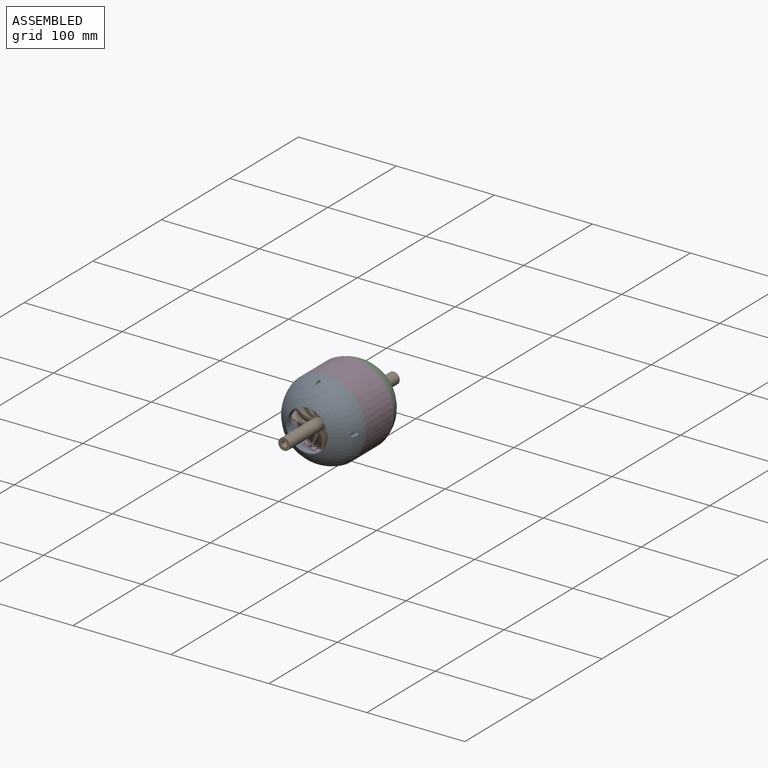
[diagram: assembled view]
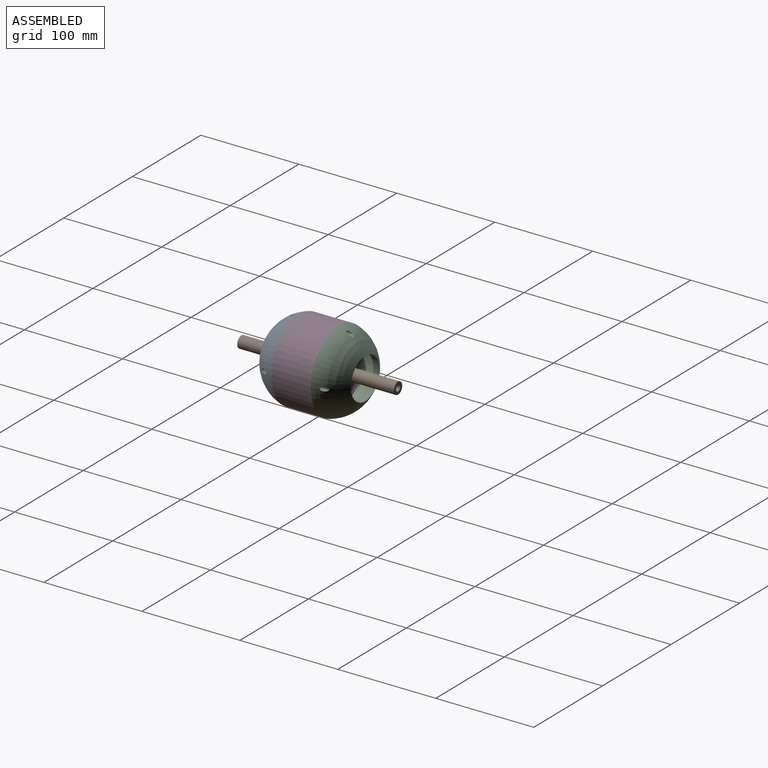
[diagram: assembled view, second angle]
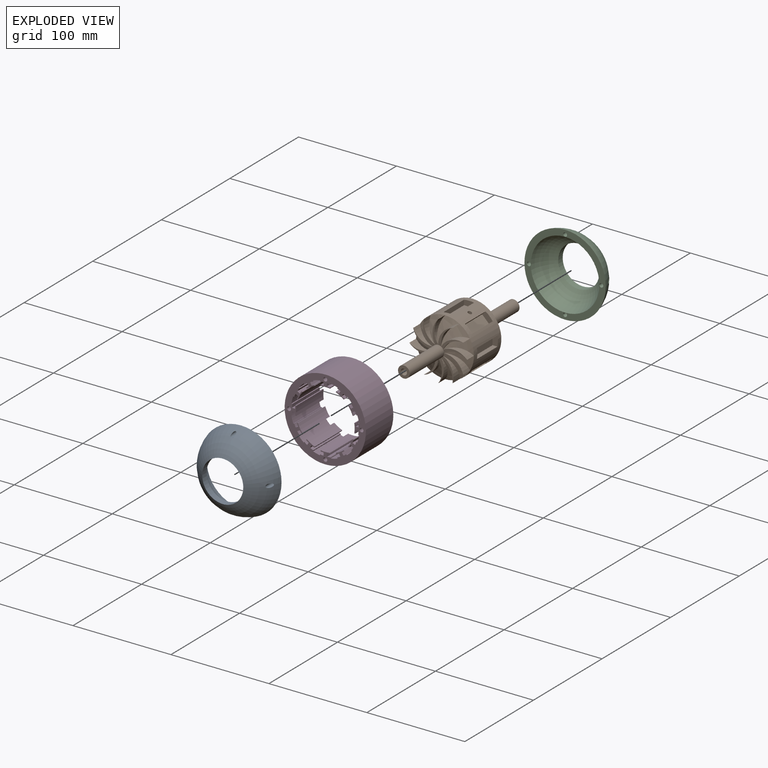
[diagram: exploded view]
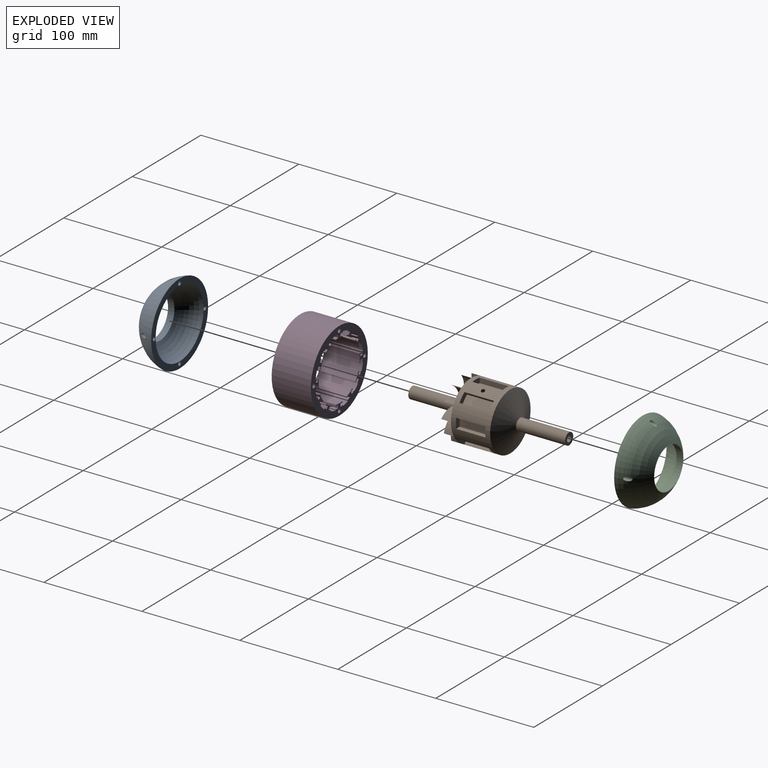
[diagram: exploded view, second angle]
ASSEMBLY  parts=4 mates=3
PART A: 8 faces, bbox 26.5x83x83 mm
  f0: cylinder r=2mm len=14.37mm, axis (1,0,0), area 138.9mm2, adj f3,f6
  f1: cylinder r=2mm len=14.37mm, axis (1,0,0), area 138.9mm2, adj f3,f6
  f2: cylinder r=2mm len=14.37mm, axis (1,0,0), area 138.9mm2, adj f3,f6
  f3: torus R=2.52mm, axis (-1,0,0), area 7107.3mm2, adj f0,f1,f2,f4,f6,f7
  f4: cylinder r=21mm len=42mm, axis (-1,0,0), area 857.7mm2, adj f3,f5
  f5: torus R=5.55mm, axis (-1,0,0), area 4646.6mm2, adj f4,f6
  f6: plane 83x83mm, normal (1,0,0), area 1511.9mm2, adj f0,f1,f2,f3,f5,f7
  f7: cylinder r=2mm len=14.37mm, axis (1,0,0), area 138.9mm2, adj f3,f6
PART B: 100 faces, bbox 59x160x59 mm
  f0: cylinder r=3.1mm len=100mm, axis (0,1,0), area 1921.6mm2, adj f13,f57,f97,f99
  f1: cylinder r=29.5mm len=59mm, axis (0,1,0), area 4928.7mm2, adj f2,f3,f4,f5,f6,f7,f8,f9
  f2: cone r=6mm half-angle=66.9deg, axis (0,1,0), area 189.8mm2, adj f1,f93,f95
  f3: cone r=6mm half-angle=66.9deg, axis (0,1,0), area 189.8mm2, adj f1,f90,f92
  f4: cone r=6mm half-angle=66.9deg, axis (0,1,0), area 189.8mm2, adj f1,f87,f89
  f5: cone r=6mm half-angle=66.9deg, axis (0,1,0), area 189.8mm2, adj f1,f84,f86
  f6: cone r=6mm half-angle=66.9deg, axis (0,1,0), area 189.8mm2, adj f1,f81,f83
  f7: cone r=6mm half-angle=66.9deg, axis (0,1,0), area 189.8mm2, adj f1,f78,f80
  f8: cone r=6mm half-angle=66.9deg, axis (0,1,0), area 189.8mm2, adj f1,f75,f77
  f9: cone r=6mm half-angle=66.9deg, axis (0,1,0), area 189.8mm2, adj f1,f72,f74
  f10: cone r=6mm half-angle=66.9deg, axis (0,1,0), area 189.8mm2, adj f1,f69,f71
  f11: cone r=6mm half-angle=66.9deg, axis (0,1,0), area 189.8mm2, adj f1,f66,f68
  f12: cone r=6mm half-angle=66.9deg, axis (0,1,0), area 189.8mm2, adj f1,f60,f65
  f13: plane 12x12mm, normal (0,1,0), area 82.9mm2, adj f0,f14
  f14: cylinder r=6mm len=50mm, axis (0,1,0), area 1885mm2, adj f13,f15
  f15: cone r=6mm half-angle=66.9deg, axis (0,-1,0), area 2848.3mm2, adj f1,f14
  f16: cone r=6mm half-angle=66.9deg, axis (0,1,0), area 189.8mm2, adj f1,f59,f96
  f17: plane 30x5.06mm, normal (1,0,0), area 151.7mm2, adj f1,f19,f20,f21
  f18: plane 30x5.06mm, normal (-1,0,0), area 151.7mm2, adj f1,f19,f20,f21
  f19: plane 10.2x5.5mm, normal (0,-1,0), area 54.6mm2, adj f1,f17,f18,f21
  f20: plane 10.2x5.5mm, normal (0,1,0), area 54.6mm2, adj f1,f17,f18,f21
  f21: plane 30x10.2mm, normal (0,0,1), area 306mm2, adj f17,f18,f19,f20
  f22: plane 30x3.58mm, normal (0.71,0,0.71), area 151.7mm2, adj f1,f24,f25,f26
  f23: plane 30x3.58mm, normal (-0.71,0,-0.71), area 151.7mm2, adj f1,f24,f25,f26
  f24: plane 10.79x10.79mm, normal (0,-1,0), area 54.6mm2, adj f1,f22,f23,f26
  f25: plane 10.79x10.79mm, normal (0,1,0), area 54.6mm2, adj f1,f22,f23,f26
  f26: plane 30x7.21mm, normal (-0.71,0,0.71), area 306mm2, adj f22,f23,f24,f25
  f27: plane 30x5.06mm, normal (0,0,1), area 151.7mm2, adj f1,f29,f30,f31
  f28: plane 30x5.06mm, normal (0,0,-1), area 151.7mm2, adj f1,f29,f30,f31
  f29: plane 10.2x5.5mm, normal (0,-1,0), area 54.6mm2, adj f1,f27,f28,f31
  f30: plane 10.2x5.5mm, normal (0,1,0), area 54.6mm2, adj f1,f27,f28,f31
  f31: plane 30x10.2mm, normal (-1,0,0), area 306mm2, adj f27,f28,f29,f30
  f32: plane 30x3.58mm, normal (-0.71,0,0.71), area 151.7mm2, adj f1,f34,f35,f36
  f33: plane 30x3.58mm, normal (0.71,0,-0.71), area 151.7mm2, adj f1,f34,f35,f36
  f34: plane 10.79x10.79mm, normal (0,-1,0), area 54.6mm2, adj f1,f32,f33,f36
  f35: plane 10.79x10.79mm, normal (0,1,0), area 54.6mm2, adj f1,f32,f33,f36
  f36: plane 30x7.21mm, normal (-0.71,0,-0.71), area 306mm2, adj f32,f33,f34,f35
  f37: plane 30x5.06mm, normal (-1,0,0), area 151.7mm2, adj f1,f39,f40,f41
  f38: plane 30x5.06mm, normal (1,0,0), area 151.7mm2, adj f1,f39,f40,f41
  f39: plane 10.2x5.5mm, normal (0,-1,0), area 54.6mm2, adj f1,f37,f38,f41
  f40: plane 10.2x5.5mm, normal (0,1,0), area 54.6mm2, adj f1,f37,f38,f41
  f41: plane 30x10.2mm, normal (0,0,-1), area 306mm2, adj f37,f38,f39,f40
  f42: plane 30x3.58mm, normal (-0.71,0,-0.71), area 151.7mm2, adj f1,f44,f45,f46
  f43: plane 30x3.58mm, normal (0.71,0,0.71), area 151.7mm2, adj f1,f44,f45,f46
  f44: plane 10.79x10.79mm, normal (0,-1,0), area 54.6mm2, adj f1,f42,f43,f46
  f45: plane 10.79x10.79mm, normal (0,1,0), area 54.6mm2, adj f1,f42,f43,f46
  f46: plane 30x7.21mm, normal (0.71,0,-0.71), area 306mm2, adj f42,f43,f44,f45
  f47: plane 30x5.06mm, normal (0,0,-1), area 151.7mm2, adj f1,f49,f50,f51
  f48: plane 30x5.06mm, normal (0,0,1), area 151.7mm2, adj f1,f49,f50,f51
  f49: plane 10.2x5.5mm, normal (0,-1,0), area 54.6mm2, adj f1,f47,f48,f51
  f50: plane 10.2x5.5mm, normal (0,1,0), area 54.6mm2, adj f1,f47,f48,f51
  f51: plane 30x10.2mm, normal (1,0,0), area 306mm2, adj f47,f48,f49,f50
  f52: plane 30x3.58mm, normal (0.71,0,-0.71), area 151.7mm2, adj f1,f54,f55,f56
  f53: plane 30x3.58mm, normal (-0.71,0,0.71), area 151.7mm2, adj f1,f54,f55,f56
  f54: plane 10.79x10.79mm, normal (0,-1,0), area 54.6mm2, adj f1,f52,f53,f56
  f55: plane 10.79x10.79mm, normal (0,1,0), area 54.6mm2, adj f1,f52,f53,f56
  f56: plane 30x7.21mm, normal (0.71,0,0.71), area 306mm2, adj f52,f53,f54,f55
  f57: cylinder r=2mm len=26.53mm, axis (0.38,0,0.92), area 340.1mm2, adj f0,f1
  f58: plane 20.35x14.75mm, normal (0,-1,0), area 43.7mm2, adj f59,f60,f63
  f59: cylinder r=20mm len=19.55mm, axis (0,1,0), area 131.8mm2, adj f16,f58,f60
  f60: cylinder r=20mm len=20.35mm, axis (0,1,0), area 125.6mm2, adj f12,f58,f59
  f61: cylinder r=3.1mm len=50mm, axis (0,1,0), area 973.9mm2, adj f62,f98
  f62: plane 12x12mm, normal (0,-1,0), area 82.9mm2, adj f61,f63
  f63: cylinder r=6mm len=50mm, axis (0,1,0), area 1885mm2, adj f58,f62,f64,f67,f70,f73,f76,f79
  f64: plane 22.55x12.41mm, normal (0,-1,0), area 43.7mm2, adj f63,f65,f66
  f65: cylinder r=20mm len=22.55mm, axis (0,1,0), area 131.8mm2, adj f12,f64,f66
  f66: cylinder r=20mm len=20.35mm, axis (0,1,0), area 125.6mm2, adj f11,f64,f65
  f67: plane 24.3x5.81mm, normal (0,-1,0), area 43.7mm2, adj f63,f68,f69
  f68: cylinder r=20mm len=24.3mm, axis (0,1,0), area 131.8mm2, adj f11,f67,f69
  f69: cylinder r=20mm len=23.5mm, axis (0,1,0), area 125.6mm2, adj f10,f67,f68
  f70: plane 20.35x14.75mm, normal (0,-1,0), area 43.7mm2, adj f63,f71,f72
  f71: cylinder r=20mm len=19.55mm, axis (0,1,0), area 131.8mm2, adj f10,f70,f72
  f72: cylinder r=20mm len=20.35mm, axis (0,1,0), area 125.6mm2, adj f9,f70,f71
  f73: plane 22.55x12.41mm, normal (0,-1,0), area 43.7mm2, adj f63,f74,f75
  f74: cylinder r=20mm len=22.55mm, axis (0,1,0), area 131.8mm2, adj f9,f73,f75
  f75: cylinder r=20mm len=20.35mm, axis (0,1,0), area 125.6mm2, adj f8,f73,f74
  f76: plane 24.3x5.81mm, normal (0,-1,0), area 43.7mm2, adj f63,f77,f78
  f77: cylinder r=20mm len=24.3mm, axis (0,1,0), area 131.8mm2, adj f8,f76,f78
  f78: cylinder r=20mm len=23.5mm, axis (0,1,0), area 125.6mm2, adj f7,f76,f77
  f79: plane 20.35x14.75mm, normal (0,-1,0), area 43.7mm2, adj f63,f80,f81
  f80: cylinder r=20mm len=19.55mm, axis (0,1,0), area 131.8mm2, adj f7,f79,f81
  f81: cylinder r=20mm len=20.35mm, axis (0,1,0), area 125.6mm2, adj f6,f79,f80
  f82: plane 22.55x12.41mm, normal (0,-1,0), area 43.7mm2, adj f63,f83,f84
  f83: cylinder r=20mm len=22.55mm, axis (0,1,0), area 131.8mm2, adj f6,f82,f84
  f84: cylinder r=20mm len=20.35mm, axis (0,1,0), area 125.6mm2, adj f5,f82,f83
  f85: plane 24.3x5.81mm, normal (0,-1,0), area 43.7mm2, adj f63,f86,f87
  f86: cylinder r=20mm len=24.3mm, axis (0,1,0), area 131.8mm2, adj f5,f85,f87
  f87: cylinder r=20mm len=23.5mm, axis (0,1,0), area 125.6mm2, adj f4,f85,f86
  f88: plane 20.35x14.75mm, normal (0,-1,0), area 43.7mm2, adj f63,f89,f90
  f89: cylinder r=20mm len=19.55mm, axis (0,1,0), area 131.8mm2, adj f4,f88,f90
  f90: cylinder r=20mm len=20.35mm, axis (0,1,0), area 125.6mm2, adj f3,f88,f89
  f91: plane 22.55x12.41mm, normal (0,-1,0), area 43.7mm2, adj f63,f92,f93
  f92: cylinder r=20mm len=22.55mm, axis (0,1,0), area 131.8mm2, adj f3,f91,f93
  f93: cylinder r=20mm len=20.35mm, axis (0,1,0), area 125.6mm2, adj f2,f91,f92
  f94: plane 24.3x5.81mm, normal (0,-1,0), area 43.7mm2, adj f63,f95,f96
  f95: cylinder r=20mm len=24.3mm, axis (0,1,0), area 131.8mm2, adj f2,f94,f96
  f96: cylinder r=20mm len=23.5mm, axis (0,1,0), area 125.6mm2, adj f16,f94,f95
  f97: plane 6.2x6.2mm, normal (0,1,0), area 30.2mm2, adj f0
  f98: plane 6.2x6.2mm, normal (0,-1,0), area 30.2mm2, adj f61
  f99: cylinder r=2mm len=26.53mm, axis (-0.38,0,-0.92), area 334.8mm2, adj f0,f1
PART C: same geometry as A
PART D: 151 faces, bbox 83x40x83 mm
  f0: cylinder r=2mm len=40mm, axis (0,1,0), area 502.7mm2, adj f148,f149
  f1: cylinder r=2mm len=40mm, axis (0,1,0), area 502.7mm2, adj f148,f149
  f2: cylinder r=2mm len=40mm, axis (0,1,0), area 502.7mm2, adj f148,f149
  f3: cylinder r=30mm len=40mm, axis (0,1,0), area 377mm2, adj f4,f146,f148,f149
  f4: plane 40x0.93mm, normal (-0.36,0,0.93), area 40mm2, adj f3,f5,f148,f149
  f5: cylinder r=31mm len=40mm, axis (0,1,0), area 129.9mm2, adj f4,f6,f148,f149
  f6: plane 40x2.67mm, normal (-0.45,0,0.89), area 120mm2, adj f5,f7,f148,f149
  f7: cylinder r=34mm len=40mm, axis (0,1,0), area 142.4mm2, adj f6,f8,f148,f149
  f8: plane 40x0.93mm, normal (-0.36,0,0.93), area 40mm2, adj f7,f9,f148,f149
  f9: cylinder r=35mm len=40mm, axis (0,1,0), area 293.2mm2, adj f8,f10,f148,f149
  f10: plane 40x0.99mm, normal (0.16,0,-0.99), area 40mm2, adj f9,f11,f148,f149
  f11: cylinder r=34mm len=40mm, axis (0,1,0), area 142.4mm2, adj f10,f12,f148,f149
  f12: plane 40x3mm, normal (0.05,0,-1), area 120mm2, adj f11,f13,f148,f149
  f13: cylinder r=31mm len=40mm, axis (0,1,0), area 129.9mm2, adj f12,f14,f148,f149
  f14: plane 40x0.99mm, normal (0.16,0,-0.99), area 40mm2, adj f13,f15,f148,f149
  f15: cylinder r=30mm len=40mm, axis (0,1,0), area 377mm2, adj f14,f16,f148,f149
  f16: plane 40x0.99mm, normal (0.16,0,0.99), area 40mm2, adj f15,f17,f148,f149
  f17: cylinder r=31mm len=40mm, axis (0,1,0), area 129.9mm2, adj f16,f18,f148,f149
  f18: plane 40x3mm, normal (0.05,0,1), area 120mm2, adj f17,f19,f148,f149
  f19: cylinder r=34mm len=40mm, axis (0,1,0), area 142.4mm2, adj f18,f20,f148,f149
  f20: plane 40x0.99mm, normal (0.16,0,0.99), area 40mm2, adj f19,f21,f148,f149
  f21: cylinder r=35mm len=40mm, axis (0,1,0), area 293.2mm2, adj f20,f22,f148,f149
  f22: plane 40x0.93mm, normal (-0.36,0,-0.93), area 40mm2, adj f21,f23,f148,f149
  f23: cylinder r=34mm len=40mm, axis (0,1,0), area 142.4mm2, adj f22,f24,f148,f149
  f24: plane 40x2.67mm, normal (-0.45,0,-0.89), area 120mm2, adj f23,f25,f148,f149
  f25: cylinder r=31mm len=40mm, axis (0,1,0), area 129.9mm2, adj f24,f26,f148,f149
  f26: plane 40x0.93mm, normal (-0.36,0,-0.93), area 40mm2, adj f25,f27,f148,f149
  f27: cylinder r=30mm len=40mm, axis (0,1,0), area 377mm2, adj f26,f28,f148,f149
  f28: plane 40x0.78mm, normal (0.63,0,0.78), area 40mm2, adj f27,f29,f148,f149
  f29: cylinder r=31mm len=40mm, axis (0,1,0), area 129.9mm2, adj f28,f30,f148,f149
  f30: plane 40x2.52mm, normal (0.54,0,0.84), area 120mm2, adj f29,f31,f148,f149
  f31: cylinder r=34mm len=40mm, axis (0,1,0), area 142.4mm2, adj f30,f32,f148,f149
  f32: plane 40x0.78mm, normal (0.63,0,0.78), area 40mm2, adj f31,f33,f148,f149
  f33: cylinder r=35mm len=40mm, axis (0,1,0), area 293.2mm2, adj f32,f34,f148,f149
  f34: plane 40x0.78mm, normal (-0.78,0,-0.63), area 40mm2, adj f33,f35,f148,f149
  f35: cylinder r=34mm len=40mm, axis (0,1,0), area 142.4mm2, adj f34,f36,f148,f149
  f36: plane 40x2.52mm, normal (-0.84,0,-0.54), area 120mm2, adj f35,f37,f148,f149
  f37: cylinder r=31mm len=40mm, axis (0,1,0), area 129.9mm2, adj f36,f38,f148,f149
  f38: plane 40x0.78mm, normal (-0.78,0,-0.63), area 40mm2, adj f37,f39,f148,f149
  f39: cylinder r=30mm len=40mm, axis (0,1,0), area 377mm2, adj f38,f40,f148,f149
  f40: plane 40x0.93mm, normal (0.93,0,0.36), area 40mm2, adj f39,f41,f148,f149
  f41: cylinder r=31mm len=40mm, axis (0,1,0), area 129.9mm2, adj f40,f42,f148,f149
  f42: plane 40x2.67mm, normal (0.89,0,0.45), area 120mm2, adj f41,f43,f148,f149
  f43: cylinder r=34mm len=40mm, axis (0,1,0), area 142.4mm2, adj f42,f44,f148,f149
  f44: plane 40x0.93mm, normal (0.93,0,0.36), area 40mm2, adj f43,f45,f148,f149
  f45: cylinder r=35mm len=40mm, axis (0,1,0), area 293.2mm2, adj f44,f46,f148,f149
  f46: plane 40x0.99mm, normal (-0.99,0,-0.16), area 40mm2, adj f45,f47,f148,f149
  f47: cylinder r=34mm len=40mm, axis (0,1,0), area 142.4mm2, adj f46,f48,f148,f149
  f48: plane 40x3mm, normal (-1,0,-0.05), area 120mm2, adj f47,f49,f148,f149
  f49: cylinder r=31mm len=40mm, axis (0,1,0), area 129.9mm2, adj f48,f50,f148,f149
  f50: plane 40x0.99mm, normal (-0.99,0,-0.16), area 40mm2, adj f49,f51,f148,f149
  f51: cylinder r=30mm len=40mm, axis (0,1,0), area 377mm2, adj f50,f52,f148,f149
  f52: plane 40x0.99mm, normal (0.99,0,-0.16), area 40mm2, adj f51,f53,f148,f149
  f53: cylinder r=31mm len=40mm, axis (0,1,0), area 129.9mm2, adj f52,f54,f148,f149
  f54: plane 40x3mm, normal (1,0,-0.05), area 120mm2, adj f53,f55,f148,f149
  f55: cylinder r=34mm len=40mm, axis (0,1,0), area 142.4mm2, adj f54,f56,f148,f149
  f56: plane 40x0.99mm, normal (0.99,0,-0.16), area 40mm2, adj f55,f57,f148,f149
  f57: cylinder r=35mm len=40mm, axis (0,1,0), area 293.2mm2, adj f56,f58,f148,f149
  f58: plane 40x0.93mm, normal (-0.93,0,0.36), area 40mm2, adj f57,f59,f148,f149
  f59: cylinder r=34mm len=40mm, axis (0,1,0), area 142.4mm2, adj f58,f60,f148,f149
  f60: plane 40x2.67mm, normal (-0.89,0,0.45), area 120mm2, adj f59,f61,f148,f149
  f61: cylinder r=31mm len=40mm, axis (0,1,0), area 129.9mm2, adj f60,f62,f148,f149
  f62: plane 40x0.93mm, normal (-0.93,0,0.36), area 40mm2, adj f61,f63,f148,f149
  f63: cylinder r=30mm len=40mm, axis (0,1,0), area 377mm2, adj f62,f64,f148,f149
  f64: plane 40x0.78mm, normal (0.78,0,-0.63), area 40mm2, adj f63,f65,f148,f149
  f65: cylinder r=31mm len=40mm, axis (0,1,0), area 129.9mm2, adj f64,f66,f148,f149
  f66: plane 40x2.52mm, normal (0.84,0,-0.54), area 120mm2, adj f65,f67,f148,f149
  f67: cylinder r=34mm len=40mm, axis (0,1,0), area 142.4mm2, adj f66,f68,f148,f149
  f68: plane 40x0.78mm, normal (0.78,0,-0.63), area 40mm2, adj f67,f69,f148,f149
  f69: cylinder r=35mm len=40mm, axis (0,1,0), area 293.2mm2, adj f68,f70,f148,f149
  f70: plane 40x0.78mm, normal (-0.63,0,0.78), area 40mm2, adj f69,f71,f148,f149
  f71: cylinder r=34mm len=40mm, axis (0,1,0), area 142.4mm2, adj f70,f72,f148,f149
  f72: plane 40x2.52mm, normal (-0.54,0,0.84), area 120mm2, adj f71,f73,f148,f149
  f73: cylinder r=31mm len=40mm, axis (0,1,0), area 129.9mm2, adj f72,f74,f148,f149
  f74: plane 40x0.78mm, normal (-0.63,0,0.78), area 40mm2, adj f73,f75,f148,f149
  f75: cylinder r=30mm len=40mm, axis (0,1,0), area 377mm2, adj f74,f76,f148,f149
  f76: plane 40x0.93mm, normal (0.36,0,-0.93), area 40mm2, adj f75,f77,f148,f149
  f77: cylinder r=31mm len=40mm, axis (0,1,0), area 129.9mm2, adj f76,f78,f148,f149
  f78: plane 40x2.67mm, normal (0.45,0,-0.89), area 120mm2, adj f77,f79,f148,f149
  f79: cylinder r=34mm len=40mm, axis (0,1,0), area 142.4mm2, adj f78,f80,f148,f149
  f80: plane 40x0.93mm, normal (0.36,0,-0.93), area 40mm2, adj f79,f81,f148,f149
  f81: cylinder r=35mm len=40mm, axis (0,1,0), area 293.2mm2, adj f80,f82,f148,f149
  f82: plane 40x0.99mm, normal (-0.16,0,0.99), area 40mm2, adj f81,f83,f148,f149
  f83: cylinder r=34mm len=40mm, axis (0,1,0), area 142.4mm2, adj f82,f84,f148,f149
  f84: plane 40x3mm, normal (-0.05,0,1), area 120mm2, adj f83,f85,f148,f149
  f85: cylinder r=31mm len=40mm, axis (0,1,0), area 129.9mm2, adj f84,f86,f148,f149
  f86: plane 40x0.99mm, normal (-0.16,0,0.99), area 40mm2, adj f85,f87,f148,f149
  f87: cylinder r=30mm len=40mm, axis (0,1,0), area 377mm2, adj f86,f88,f148,f149
  f88: plane 40x0.99mm, normal (-0.16,0,-0.99), area 40mm2, adj f87,f89,f148,f149
  f89: cylinder r=31mm len=40mm, axis (0,1,0), area 129.9mm2, adj f88,f90,f148,f149
  f90: plane 40x3mm, normal (-0.05,0,-1), area 120mm2, adj f89,f91,f148,f149
  f91: cylinder r=34mm len=40mm, axis (0,1,0), area 142.4mm2, adj f90,f92,f148,f149
  f92: plane 40x0.99mm, normal (-0.16,0,-0.99), area 40mm2, adj f91,f93,f148,f149
  f93: cylinder r=35mm len=40mm, axis (0,1,0), area 293.2mm2, adj f92,f94,f148,f149
  f94: plane 40x0.93mm, normal (0.36,0,0.93), area 40mm2, adj f93,f95,f148,f149
  f95: cylinder r=34mm len=40mm, axis (0,1,0), area 142.4mm2, adj f94,f96,f148,f149
  f96: plane 40x2.67mm, normal (0.45,0,0.89), area 120mm2, adj f95,f97,f148,f149
  f97: cylinder r=31mm len=40mm, axis (0,1,0), area 129.9mm2, adj f96,f98,f148,f149
  f98: plane 40x0.93mm, normal (0.36,0,0.93), area 40mm2, adj f97,f99,f148,f149
  f99: cylinder r=30mm len=40mm, axis (0,1,0), area 377mm2, adj f98,f100,f148,f149
  f100: plane 40x0.78mm, normal (-0.63,0,-0.78), area 40mm2, adj f99,f101,f148,f149
  f101: cylinder r=31mm len=40mm, axis (0,1,0), area 129.9mm2, adj f100,f102,f148,f149
  f102: plane 40x2.52mm, normal (-0.54,0,-0.84), area 120mm2, adj f101,f103,f148,f149
  f103: cylinder r=34mm len=40mm, axis (0,1,0), area 142.4mm2, adj f102,f104,f148,f149
  f104: plane 40x0.78mm, normal (-0.63,0,-0.78), area 40mm2, adj f103,f105,f148,f149
  f105: cylinder r=35mm len=40mm, axis (0,1,0), area 293.2mm2, adj f104,f106,f148,f149
  f106: plane 40x0.78mm, normal (0.78,0,0.63), area 40mm2, adj f105,f107,f148,f149
  f107: cylinder r=34mm len=40mm, axis (0,1,0), area 142.4mm2, adj f106,f108,f148,f149
  f108: plane 40x2.52mm, normal (0.84,0,0.54), area 120mm2, adj f107,f109,f148,f149
  f109: cylinder r=31mm len=40mm, axis (0,1,0), area 129.9mm2, adj f108,f110,f148,f149
  f110: plane 40x0.78mm, normal (0.78,0,0.63), area 40mm2, adj f109,f111,f148,f149
  f111: cylinder r=30mm len=40mm, axis (0,1,0), area 377mm2, adj f110,f112,f148,f149
  f112: plane 40x0.93mm, normal (-0.93,0,-0.36), area 40mm2, adj f111,f113,f148,f149
  f113: cylinder r=31mm len=40mm, axis (0,1,0), area 129.9mm2, adj f112,f114,f148,f149
  f114: plane 40x2.67mm, normal (-0.89,0,-0.45), area 120mm2, adj f113,f115,f148,f149
  f115: cylinder r=34mm len=40mm, axis (0,1,0), area 142.4mm2, adj f114,f116,f148,f149
  f116: plane 40x0.93mm, normal (-0.93,0,-0.36), area 40mm2, adj f115,f117,f148,f149
  f117: cylinder r=35mm len=40mm, axis (0,1,0), area 293.2mm2, adj f116,f118,f148,f149
  f118: plane 40x0.99mm, normal (0.99,0,0.16), area 40mm2, adj f117,f119,f148,f149
  f119: cylinder r=34mm len=40mm, axis (0,1,0), area 142.4mm2, adj f118,f120,f148,f149
  f120: plane 40x3mm, normal (1,0,0.05), area 120mm2, adj f119,f121,f148,f149
  f121: cylinder r=31mm len=40mm, axis (0,1,0), area 129.9mm2, adj f120,f122,f148,f149
  f122: plane 40x0.99mm, normal (0.99,0,0.16), area 40mm2, adj f121,f123,f148,f149
  f123: cylinder r=30mm len=40mm, axis (0,1,0), area 377mm2, adj f122,f124,f148,f149
  f124: plane 40x0.99mm, normal (-0.99,0,0.16), area 40mm2, adj f123,f125,f148,f149
  f125: cylinder r=31mm len=40mm, axis (0,1,0), area 129.9mm2, adj f124,f126,f148,f149
  f126: plane 40x3mm, normal (-1,0,0.05), area 120mm2, adj f125,f127,f148,f149
  f127: cylinder r=34mm len=40mm, axis (0,1,0), area 142.4mm2, adj f126,f128,f148,f149
  f128: plane 40x0.99mm, normal (-0.99,0,0.16), area 40mm2, adj f127,f129,f148,f149
  f129: cylinder r=35mm len=40mm, axis (0,1,0), area 293.2mm2, adj f128,f130,f148,f149
  f130: plane 40x0.93mm, normal (0.93,0,-0.36), area 40mm2, adj f129,f131,f148,f149
  f131: cylinder r=34mm len=40mm, axis (0,1,0), area 142.4mm2, adj f130,f132,f148,f149
  f132: plane 40x2.67mm, normal (0.89,0,-0.45), area 120mm2, adj f131,f133,f148,f149
  f133: cylinder r=31mm len=40mm, axis (0,1,0), area 129.9mm2, adj f132,f134,f148,f149
  f134: plane 40x0.93mm, normal (0.93,0,-0.36), area 40mm2, adj f133,f135,f148,f149
  f135: cylinder r=30mm len=40mm, axis (0,1,0), area 377mm2, adj f134,f136,f148,f149
  f136: plane 40x0.78mm, normal (-0.78,0,0.63), area 40mm2, adj f135,f137,f148,f149
  f137: cylinder r=31mm len=40mm, axis (0,1,0), area 129.9mm2, adj f136,f138,f148,f149
  f138: plane 40x2.52mm, normal (-0.84,0,0.54), area 120mm2, adj f137,f139,f148,f149
  f139: cylinder r=34mm len=40mm, axis (0,1,0), area 142.4mm2, adj f138,f140,f148,f149
  f140: plane 40x0.78mm, normal (-0.78,0,0.63), area 40mm2, adj f139,f141,f148,f149
  f141: cylinder r=35mm len=40mm, axis (0,1,0), area 293.2mm2, adj f140,f142,f148,f149
  f142: plane 40x0.78mm, normal (0.63,0,-0.78), area 40mm2, adj f141,f143,f148,f149
  f143: cylinder r=34mm len=40mm, axis (0,1,0), area 142.4mm2, adj f142,f144,f148,f149
  f144: plane 40x2.52mm, normal (0.54,0,-0.84), area 120mm2, adj f143,f145,f148,f149
  f145: cylinder r=31mm len=40mm, axis (0,1,0), area 129.9mm2, adj f144,f146,f148,f149
  f146: plane 40x0.78mm, normal (0.63,0,-0.78), area 40mm2, adj f3,f145,f148,f149
  f147: cylinder r=41.5mm len=83mm, axis (0,1,0), area 10430.1mm2, adj f148,f149
  f148: plane 83x83mm, normal (0,-1,0), area 1879.5mm2, adj f0,f1,f2,f3,f4,f5,f6,f7
  f149: plane 83x83mm, normal (0,1,0), area 1879.5mm2, adj f0,f1,f2,f3,f4,f5,f6,f7
  f150: cylinder r=2mm len=40mm, axis (0,1,0), area 502.7mm2, adj f148,f149
PLACE A rot(axis=(0.58,0.58,0.58),120deg) t=(-6.4,-43.04,0.99)mm
PLACE B t=(-6.4,-3.04,0.99)mm
PLACE C rot(axis=(0.58,-0.58,-0.58),120deg) t=(-6.4,36.96,0.99)mm
PLACE D t=(-6.4,-3.04,0.99)mm
MATE revolute B.f0 <-> D.f147  axis (0,1,0) through (-6.4,-3.04,0.99)mm
MATE fastened C.f3 <-> D.f147  axis (0,1,0) through (-6.4,16.96,0.99)mm
MATE fastened A.f3 <-> D.f147  axis (0,-1,0) through (-6.4,-23.04,0.99)mm
